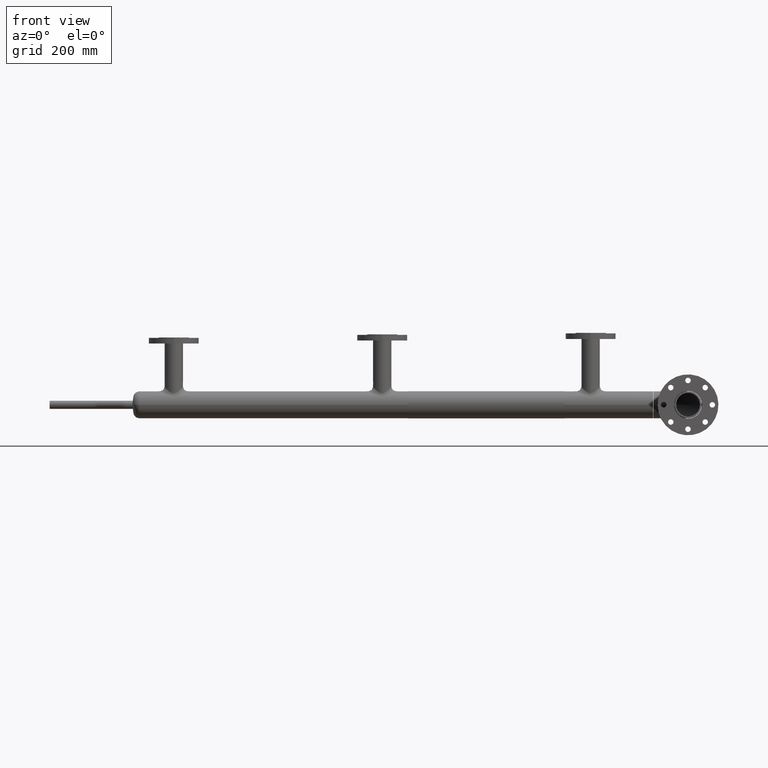
[diagram: clean part render]
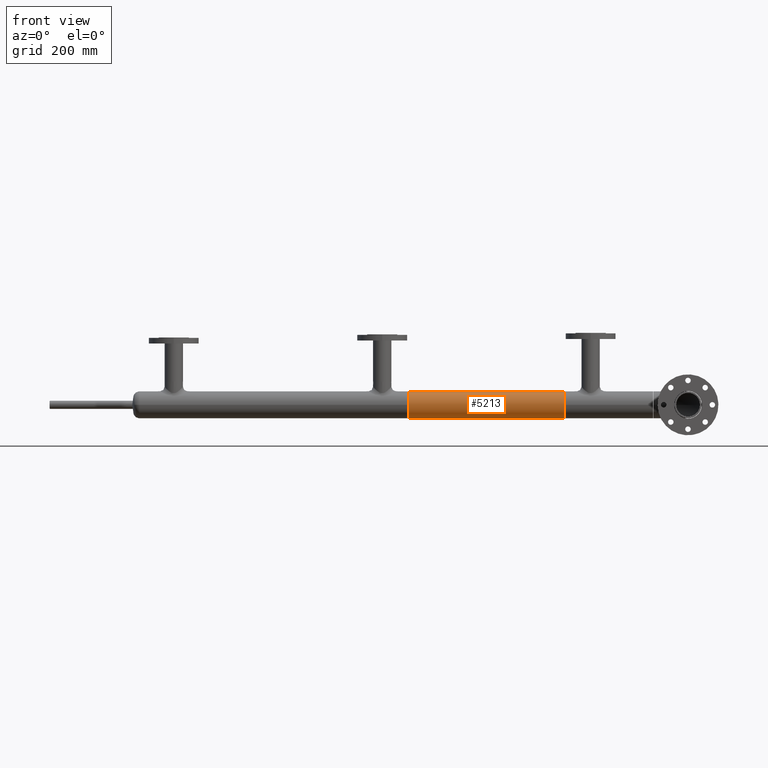
[diagram: same view with one face highlighted and labeled with its STEP entity id]
A machine part, front view. The second image highlights one B-rep face of the part: STEP entity #5213.
In plain terms, the highlighted cylindrical surface (edge-blend (fillet) strip) has radius 44.45 mm, axis along (1, 0, -0).
Its self-contained STEP definition (entity closure, byte-faithful):
#4 = DIRECTION ( 'NONE',  ( 0.000000000000000000, 0.000000000000000000, -1.000000000000000000 ) ) ;
#69 = CARTESIAN_POINT ( 'NONE',  ( 85.70000000000000284, 5.443555022209986486E-15, 44.45000000000000995 ) ) ;
#129 = CARTESIAN_POINT ( 'NONE',  ( 85.70000000000000284, 0.000000000000000000, 4.586276769382526843E-65 ) ) ;
#398 = LINE ( 'NONE', #1006, #1035 ) ;
#417 = CARTESIAN_POINT ( 'NONE',  ( 85.70000000000000284, -2.517344808156641213E-83, -44.45000000000000995 ) ) ;
#477 = DIRECTION ( 'NONE',  ( 0.000000000000000000, -1.000000000000000000, -6.528202825209861639E-66 ) ) ;
#1006 = CARTESIAN_POINT ( 'NONE',  ( 85.70000000000000284, 0.000000000000000000, -44.45000000000000995 ) ) ;
#1035 = VECTOR ( 'NONE', #2569, 1000.000000000000000 ) ;
#1073 = DIRECTION ( 'NONE',  ( 0.000000000000000000, -1.000000000000000000, -6.528202825209861639E-66 ) ) ;
#1411 = CIRCLE ( 'NONE', #2396, 44.45000000000000995 ) ;
#1589 = VERTEX_POINT ( 'NONE', #1617 ) ;
#1598 = AXIS2_PLACEMENT_3D ( 'NONE', #2680, #2144, #477 ) ;
#1617 = CARTESIAN_POINT ( 'NONE',  ( 85.70000000000000284, 5.443555022209986486E-15, 44.45000000000000995 ) ) ;
#1651 = CARTESIAN_POINT ( 'NONE',  ( 599.3000000000000682, 5.443555022209986486E-15, 44.45000000000000995 ) ) ;
#1855 = VERTEX_POINT ( 'NONE', #1651 ) ;
#2144 = DIRECTION ( 'NONE',  ( -1.000000000000000000, -1.361513478024022519E-17, 4.159575351272847437E-68 ) ) ;
#2396 = AXIS2_PLACEMENT_3D ( 'NONE', #129, #5140, #1073 ) ;
#2520 = DIRECTION ( 'NONE',  ( 1.000000000000000000, 0.000000000000000000, -1.111127439881452138E-69 ) ) ;
#2569 = DIRECTION ( 'NONE',  ( 1.000000000000000000, 0.000000000000000000, -1.111127439881452138E-69 ) ) ;
#2680 = CARTESIAN_POINT ( 'NONE',  ( 599.3000000000000682, 0.000000000000000000, 4.529209264070215932E-65 ) ) ;
#3021 = CARTESIAN_POINT ( 'NONE',  ( 85.70000000000000284, 0.000000000000000000, 4.586276769382526843E-65 ) ) ;
#3073 = VERTEX_POINT ( 'NONE', #417 ) ;
#3192 = EDGE_CURVE ( 'NONE', #4638, #1855, #3519, .T. ) ;
#3466 = AXIS2_PLACEMENT_3D ( 'NONE', #3021, #2520, #4 ) ;
#3519 = CIRCLE ( 'NONE', #1598, 44.45000000000000995 ) ;
#3960 = EDGE_LOOP ( 'NONE', ( #4451, #4838, #5074, #5460 ) ) ;
#4277 = DIRECTION ( 'NONE',  ( 1.000000000000000000, 0.000000000000000000, -1.111127439881452138E-69 ) ) ;
#4298 = EDGE_CURVE ( 'NONE', #1589, #1855, #6326, .T. ) ;
#4451 = ORIENTED_EDGE ( 'NONE', *, *, #4298, .F. ) ;
#4586 = EDGE_CURVE ( 'NONE', #3073, #4638, #398, .T. ) ;
#4622 = FACE_OUTER_BOUND ( 'NONE', #3960, .T. ) ;
#4638 = VERTEX_POINT ( 'NONE', #6519 ) ;
#4838 = ORIENTED_EDGE ( 'NONE', *, *, #6343, .F. ) ;
#5074 = ORIENTED_EDGE ( 'NONE', *, *, #4586, .T. ) ;
#5140 = DIRECTION ( 'NONE',  ( -1.000000000000000000, -1.361513478024022519E-17, 4.159575351272847437E-68 ) ) ;
#5156 = CYLINDRICAL_SURFACE ( 'NONE', #3466, 44.45000000000000995 ) ;
#5213 = ADVANCED_FACE ( 'NONE', ( #4622 ), #5156, .T. ) ;
#5460 = ORIENTED_EDGE ( 'NONE', *, *, #3192, .T. ) ;
#5617 = VECTOR ( 'NONE', #4277, 1000.000000000000000 ) ;
#6326 = LINE ( 'NONE', #69, #5617 ) ;
#6343 = EDGE_CURVE ( 'NONE', #3073, #1589, #1411, .T. ) ;
#6519 = CARTESIAN_POINT ( 'NONE',  ( 599.3000000000000682, -2.517344808156641213E-83, -44.45000000000000995 ) ) ;